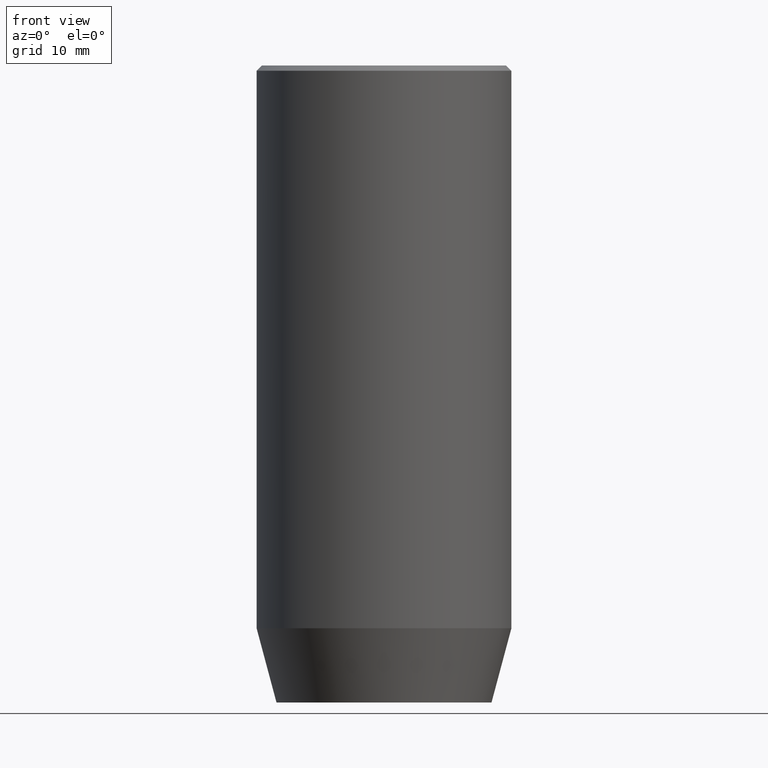
[diagram: clean part render]
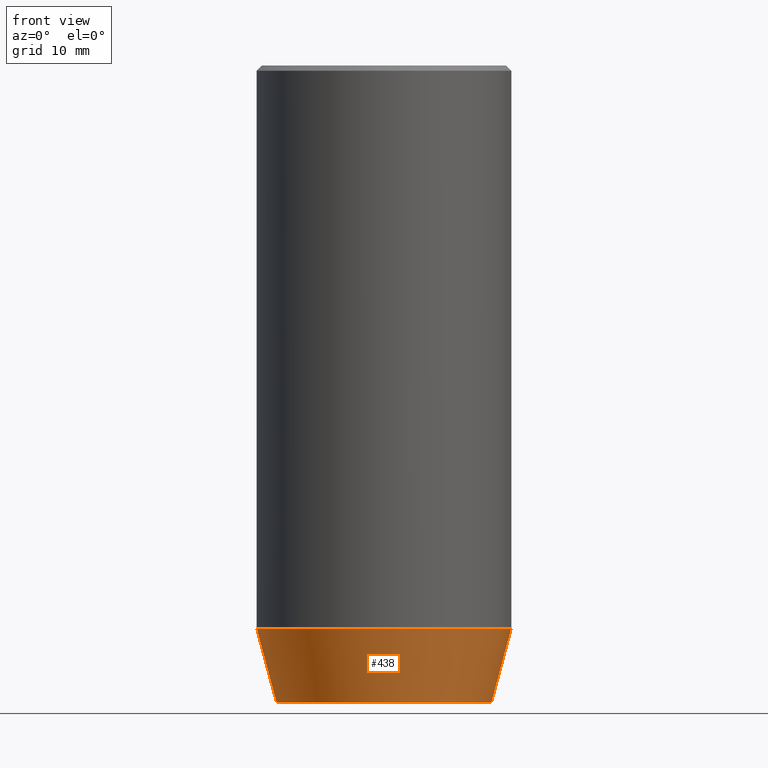
[diagram: same view with one face highlighted and labeled with its STEP entity id]
A machine part, front view. The second image highlights one B-rep face of the part: STEP entity #438.
In plain terms, the highlighted conical surface has half-angle 15 deg.
Its self-contained STEP definition (entity closure, byte-faithful):
#19 = EDGE_LOOP ( 'NONE', ( #66, #328, #248, #404 ) ) ;
#23 = FACE_OUTER_BOUND ( 'NONE', #19, .T. ) ;
#30 = CARTESIAN_POINT ( 'NONE',  ( -12.00000000000000000, 1.469576158976823947E-15, -53.00000000000000000 ) ) ;
#58 = DIRECTION ( 'NONE',  ( 1.000000000000000000, 0.000000000000000000, 0.000000000000000000 ) ) ;
#66 = ORIENTED_EDGE ( 'NONE', *, *, #410, .F. ) ;
#77 = AXIS2_PLACEMENT_3D ( 'NONE', #386, #203, #58 ) ;
#112 = DIRECTION ( 'NONE',  ( -0.2588190451025213501, 3.169619151431772337E-17, 0.9659258262890680902 ) ) ;
#118 = DIRECTION ( 'NONE',  ( 1.000000000000000000, 0.000000000000000000, 0.000000000000000000 ) ) ;
#140 = DIRECTION ( 'NONE',  ( -0.000000000000000000, -0.000000000000000000, 1.000000000000000000 ) ) ;
#185 = EDGE_CURVE ( 'NONE', #343, #354, #245, .T. ) ;
#203 = DIRECTION ( 'NONE',  ( -0.000000000000000000, -0.000000000000000000, 1.000000000000000000 ) ) ;
#245 = CIRCLE ( 'NONE', #409, 10.12435565298213724 ) ;
#248 = ORIENTED_EDGE ( 'NONE', *, *, #314, .T. ) ;
#250 = CARTESIAN_POINT ( 'NONE',  ( -10.12435565298213724, 1.354726066681111247E-15, -60.00000000000000000 ) ) ;
#264 = CARTESIAN_POINT ( 'NONE',  ( 0.000000000000000000, 0.000000000000000000, -53.00000000000000000 ) ) ;
#266 = AXIS2_PLACEMENT_3D ( 'NONE', #264, #356, #118 ) ;
#270 = LINE ( 'NONE', #495, #574 ) ;
#274 = EDGE_CURVE ( 'NONE', #538, #433, #512, .T. ) ;
#277 = VECTOR ( 'NONE', #477, 1000.000000000000000 ) ;
#314 = EDGE_CURVE ( 'NONE', #354, #433, #465, .T. ) ;
#328 = ORIENTED_EDGE ( 'NONE', *, *, #185, .T. ) ;
#329 = CONICAL_SURFACE ( 'NONE', #266, 12.00000000000000000, 0.2617993877991500740 ) ;
#341 = CARTESIAN_POINT ( 'NONE',  ( 12.00000000000000000, 0.000000000000000000, -53.00000000000000000 ) ) ;
#343 = VERTEX_POINT ( 'NONE', #250 ) ;
#354 = VERTEX_POINT ( 'NONE', #430 ) ;
#356 = DIRECTION ( 'NONE',  ( -0.000000000000000000, -0.000000000000000000, 1.000000000000000000 ) ) ;
#386 = CARTESIAN_POINT ( 'NONE',  ( 0.000000000000000000, 0.000000000000000000, -53.00000000000000000 ) ) ;
#404 = ORIENTED_EDGE ( 'NONE', *, *, #274, .F. ) ;
#409 = AXIS2_PLACEMENT_3D ( 'NONE', #545, #140, #501 ) ;
#410 = EDGE_CURVE ( 'NONE', #343, #538, #270, .T. ) ;
#430 = CARTESIAN_POINT ( 'NONE',  ( 10.12435565298213724, 0.000000000000000000, -60.00000000000000000 ) ) ;
#433 = VERTEX_POINT ( 'NONE', #451 ) ;
#438 = ADVANCED_FACE ( 'NONE', ( #23 ), #329, .T. ) ;
#451 = CARTESIAN_POINT ( 'NONE',  ( 12.00000000000000000, 0.000000000000000000, -53.00000000000000000 ) ) ;
#465 = LINE ( 'NONE', #341, #277 ) ;
#477 = DIRECTION ( 'NONE',  ( 0.2588190451025213501, 0.000000000000000000, 0.9659258262890680902 ) ) ;
#495 = CARTESIAN_POINT ( 'NONE',  ( -12.00000000000000000, 1.469576158976823947E-15, -53.00000000000000000 ) ) ;
#501 = DIRECTION ( 'NONE',  ( 1.000000000000000000, 0.000000000000000000, 0.000000000000000000 ) ) ;
#512 = CIRCLE ( 'NONE', #77, 12.00000000000000000 ) ;
#538 = VERTEX_POINT ( 'NONE', #30 ) ;
#545 = CARTESIAN_POINT ( 'NONE',  ( 0.000000000000000000, 0.000000000000000000, -60.00000000000000000 ) ) ;
#574 = VECTOR ( 'NONE', #112, 1000.000000000000000 ) ;